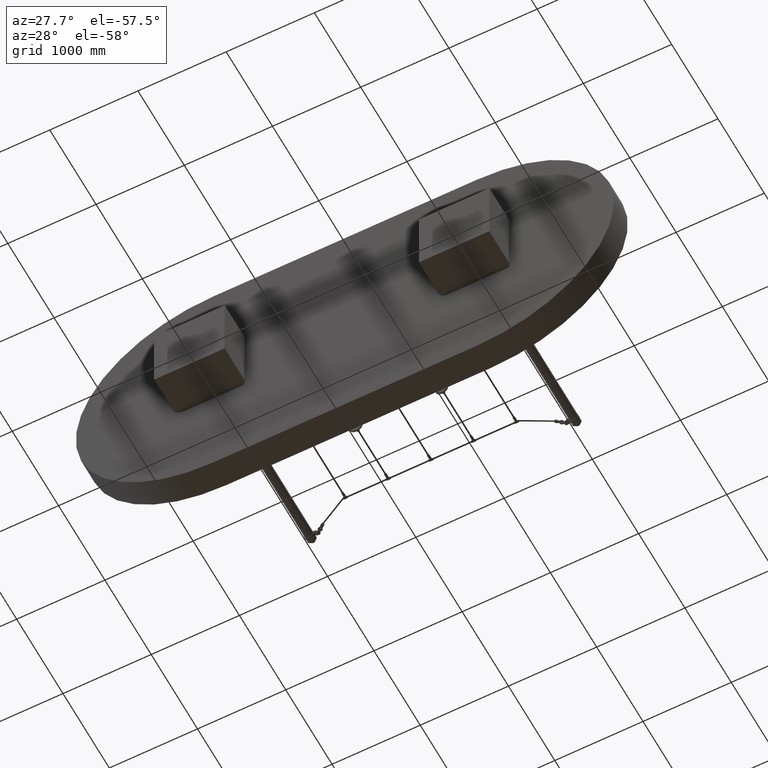
[diagram: clean part render]
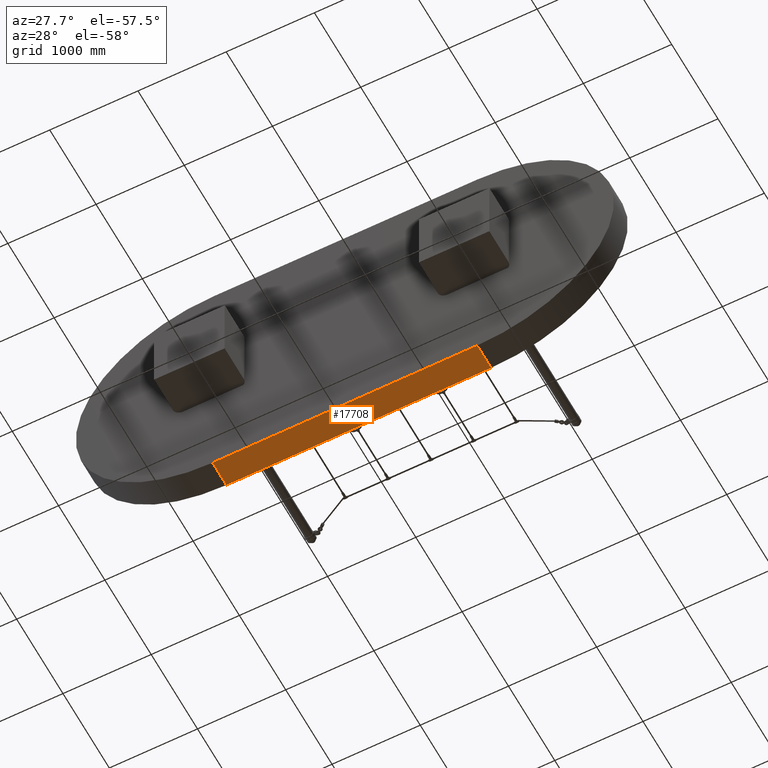
[diagram: same view with one face highlighted and labeled with its STEP entity id]
A machine part, auxiliary view. The second image highlights one B-rep face of the part: STEP entity #17708.
In plain terms, the highlighted planar face has unit normal (0, 0, 1).
Its self-contained STEP definition (entity closure, byte-faithful):
#871 = ORIENTED_EDGE ( 'NONE', *, *, #3546, .T. ) ;
#1358 = ORIENTED_EDGE ( 'NONE', *, *, #3606, .F. ) ;
#1394 = VERTEX_POINT ( 'NONE', #5064 ) ;
#3263 = CARTESIAN_POINT ( 'NONE',  ( 0.0000000000000000000, 0.0000000000000000000, -1550.000000000000000 ) ) ;
#3340 = EDGE_CURVE ( 'NONE', #1394, #13250, #17183, .T. ) ;
#3465 = DIRECTION ( 'NONE',  ( -0.0000000000000000000, -1.000000000000000000, -0.0000000000000000000 ) ) ;
#3479 = EDGE_CURVE ( 'NONE', #6747, #13343, #15473, .T. ) ;
#3546 = EDGE_CURVE ( 'NONE', #13343, #13250, #7677, .T. ) ;
#3606 = EDGE_CURVE ( 'NONE', #6747, #1394, #16543, .T. ) ;
#3775 = CARTESIAN_POINT ( 'NONE',  ( 0.0000000000000000000, 300.0000000000000000, -1550.000000000000000 ) ) ;
#3870 = VECTOR ( 'NONE', #15143, 1000.000000000000000 ) ;
#4092 = ORIENTED_EDGE ( 'NONE', *, *, #3479, .T. ) ;
#4766 = VECTOR ( 'NONE', #18034, 1000.000000000000000 ) ;
#5064 = CARTESIAN_POINT ( 'NONE',  ( 0.0000000000000000000, 300.0000000000000000, -1550.000000000000000 ) ) ;
#5942 = CARTESIAN_POINT ( 'NONE',  ( 3000.000000000000000, 300.0000000000000000, -1550.000000000000000 ) ) ;
#6686 = DIRECTION ( 'NONE',  ( 0.0000000000000000000, 0.0000000000000000000, 1.000000000000000000 ) ) ;
#6747 = VERTEX_POINT ( 'NONE', #5942 ) ;
#7677 = LINE ( 'NONE', #16198, #3870 ) ;
#8566 = ORIENTED_EDGE ( 'NONE', *, *, #3340, .F. ) ;
#8587 = EDGE_LOOP ( 'NONE', ( #871, #8566, #1358, #4092 ) ) ;
#9388 = AXIS2_PLACEMENT_3D ( 'NONE', #15007, #6686, #16358 ) ;
#10112 = FACE_OUTER_BOUND ( 'NONE', #8587, .T. ) ;
#12088 = DIRECTION ( 'NONE',  ( -1.000000000000000000, -0.0000000000000000000, -0.0000000000000000000 ) ) ;
#12340 = CARTESIAN_POINT ( 'NONE',  ( 0.0000000000000000000, 300.0000000000000000, -1550.000000000000000 ) ) ;
#12937 = VECTOR ( 'NONE', #12088, 1000.000000000000000 ) ;
#13250 = VERTEX_POINT ( 'NONE', #3263 ) ;
#13343 = VERTEX_POINT ( 'NONE', #17645 ) ;
#13520 = CARTESIAN_POINT ( 'NONE',  ( 3000.000000000000000, 300.0000000000000000, -1550.000000000000000 ) ) ;
#13606 = VECTOR ( 'NONE', #3465, 1000.000000000000000 ) ;
#15007 = CARTESIAN_POINT ( 'NONE',  ( 0.0000000000000000000, 300.0000000000000000, -1550.000000000000000 ) ) ;
#15143 = DIRECTION ( 'NONE',  ( -1.000000000000000000, -0.0000000000000000000, -0.0000000000000000000 ) ) ;
#15473 = LINE ( 'NONE', #13520, #4766 ) ;
#16198 = CARTESIAN_POINT ( 'NONE',  ( 0.0000000000000000000, 0.0000000000000000000, -1550.000000000000000 ) ) ;
#16358 = DIRECTION ( 'NONE',  ( 1.000000000000000000, 0.0000000000000000000, -0.0000000000000000000 ) ) ;
#16543 = LINE ( 'NONE', #12340, #12937 ) ;
#17183 = LINE ( 'NONE', #3775, #13606 ) ;
#17645 = CARTESIAN_POINT ( 'NONE',  ( 3000.000000000000000, 0.0000000000000000000, -1550.000000000000000 ) ) ;
#17651 = PLANE ( 'NONE',  #9388 ) ;
#17708 = ADVANCED_FACE ( 'NONE', ( #10112 ), #17651, .F. ) ;
#18034 = DIRECTION ( 'NONE',  ( -0.0000000000000000000, -1.000000000000000000, -0.0000000000000000000 ) ) ;